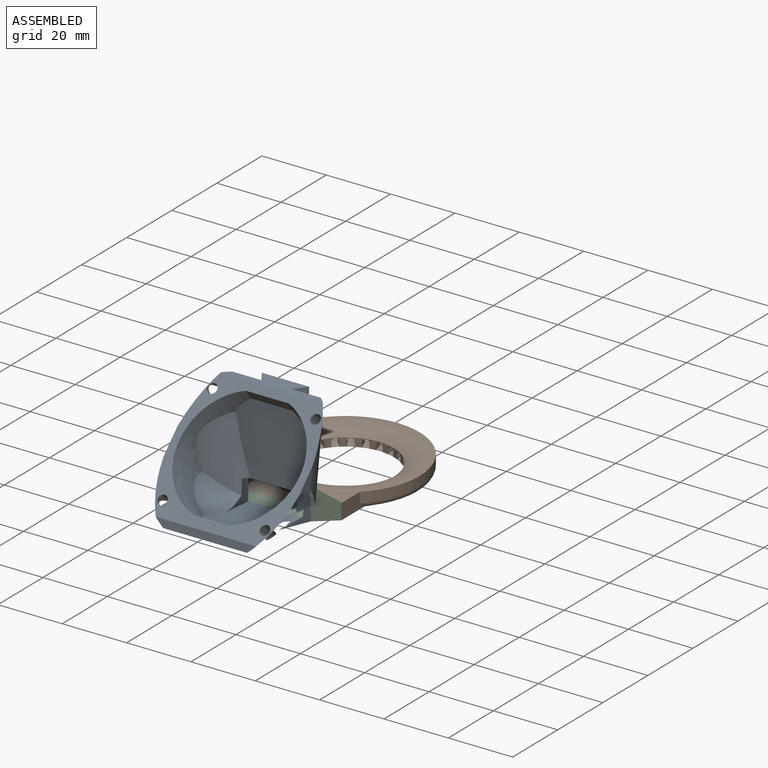
[diagram: assembled view]
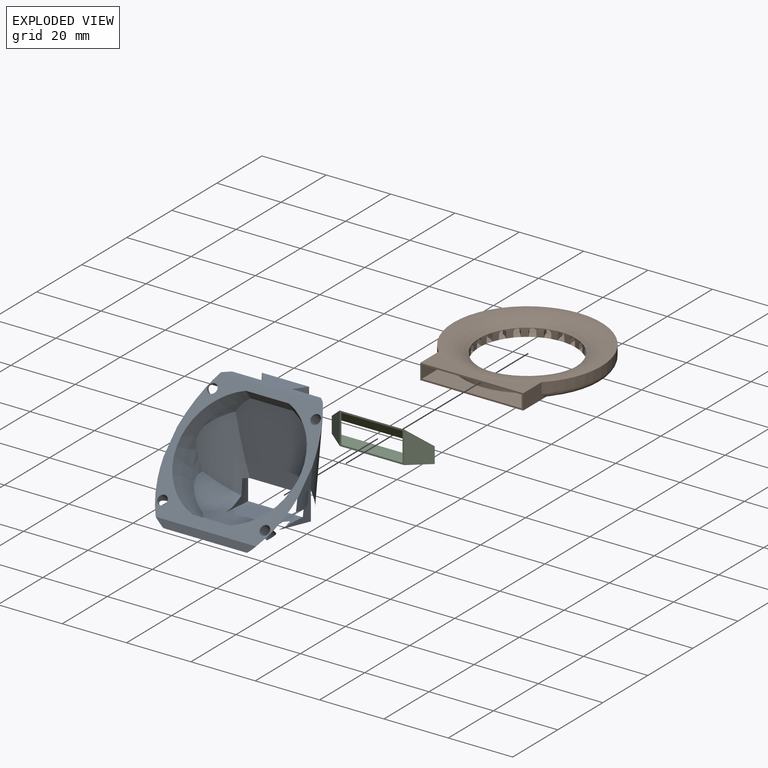
[diagram: exploded view]
GUIDED TOUR — MATED ASSEMBLY (Onshape document 0e795ca63bd0996926d6128a, AutoMate assembly 0e795ca63bd0996926d6128a_d4a6fadc4d893857315e8d26_8da15abcdf3ecfe9f2e31ee3_default)

This assembly has 3 components, labeled P0..P2 below (a component is one placed occurrence of a part; the same part can appear more than once), held together by 2 mates. A mate is a constraint between two components; its type names the relative motion it leaves free:
  FASTENED — locks the two components together rigidly (no relative motion).
Axis/direction vectors are unit vectors and 'through' points are millimeter coordinates, both in the assembly's world frame.

MATES
  1. FASTENED "Fastened 2": P2 <-> P0, direction (0.000, -1.000, 0.000) through (-1.57, 24.06, -5.65) mm
  2. FASTENED "Fastened 1": P1 <-> P2, direction (0.000, -1.000, 0.000) through (-7.57, 29.06, -5.65) mm

ASSEMBLY ORDER
  1. P0 — the base component [order verified]
  2. P2 [order verified]
  3. P1 [order verified]
Order-tag legend:
  [order verified] — this step's position reverses a verified removal order: the component was checked to insert without passing through the ones already placed.

Of the 3 components, 1 carries the full construction recipe — the FeatureScript program that regenerates the part's solid from scratch; the rest are supplied as boundary geometry only.
Each toured component is shown spotlighted twice — in the assembled view, then in the exploded view, where a leader line traces a displaced component back to its assembled socket (saturated green if recipe-attached, orange if geometry-only; every other component desaturated gray) — followed by its recipe or geometry summary and the mates that hold it.
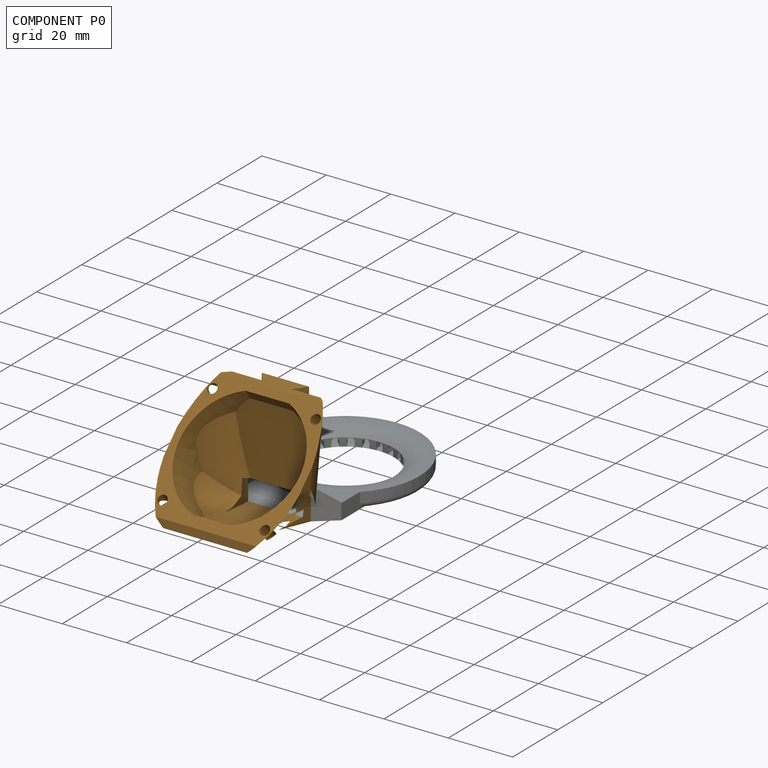
[diagram: component P0 — assembled]
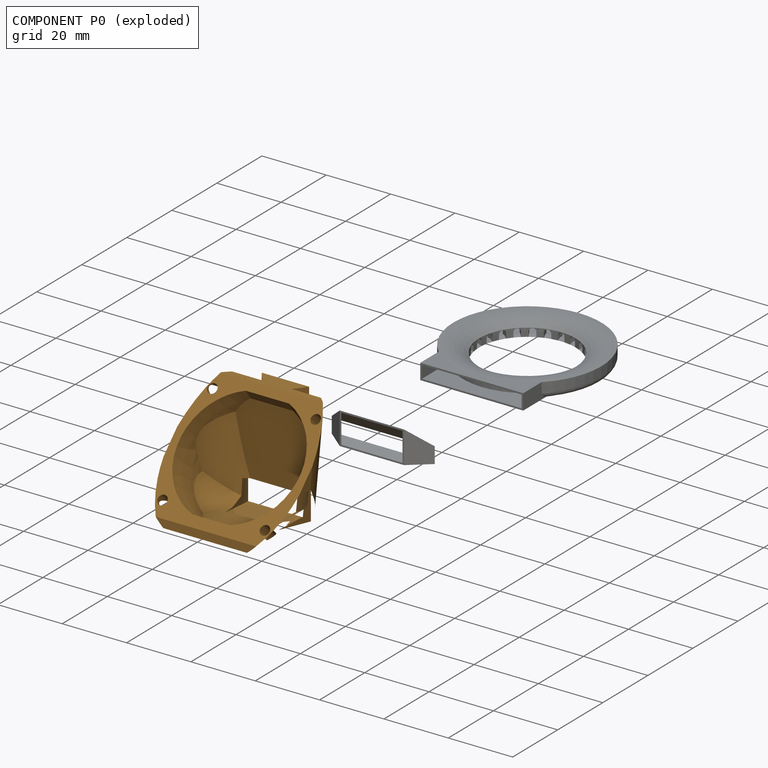
[diagram: component P0 — exploded]
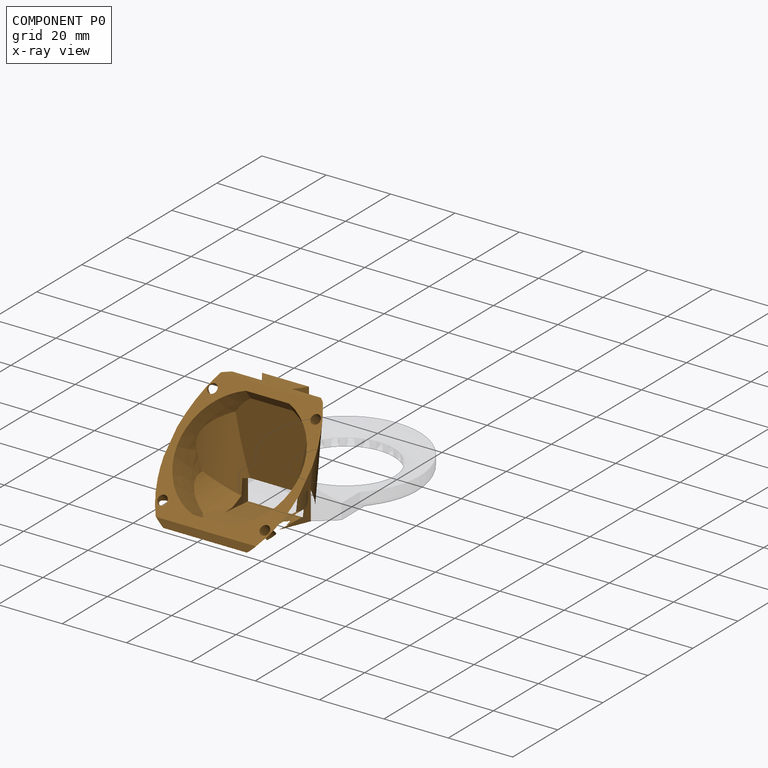
[diagram: component P0 — x-ray view]
COMPONENT P0 — geometry summary (no construction recipe available for this part):
  bounding box: 42.1 x 38.0 x 35.8 mm
  B-rep topology: 1 solid, 77 faces, 406 edges
  volume: 7590 mm^3 (13% of its bounding box)
Held by: FASTENED mate "Fastened 2" to P2.
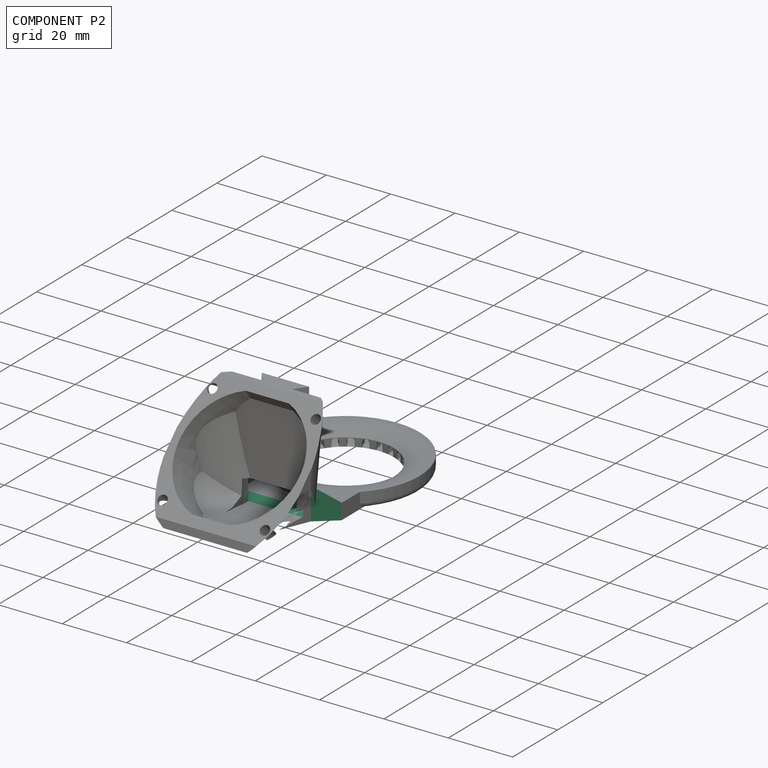
[diagram: component P2 — assembled]
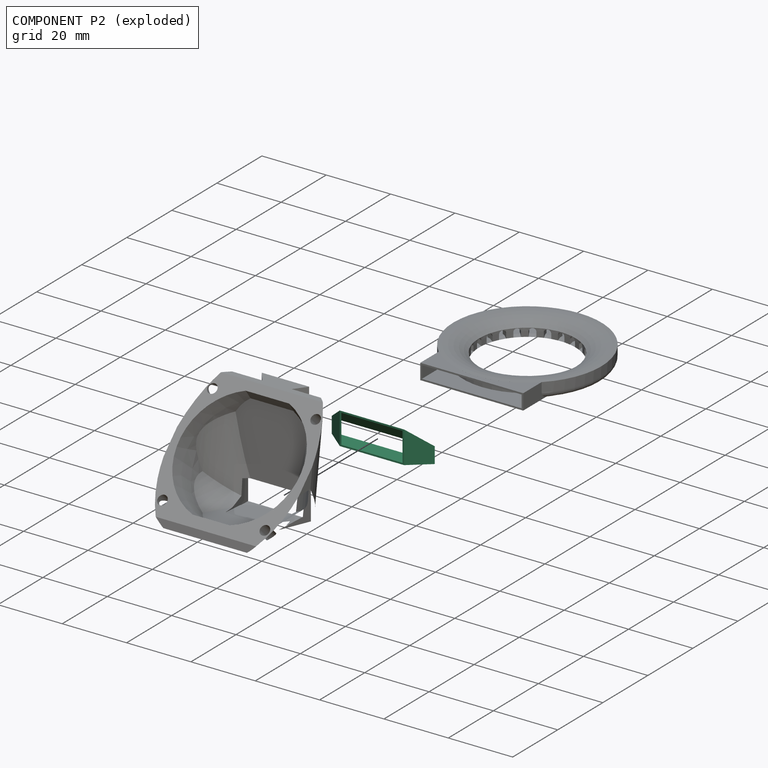
[diagram: component P2 — exploded]
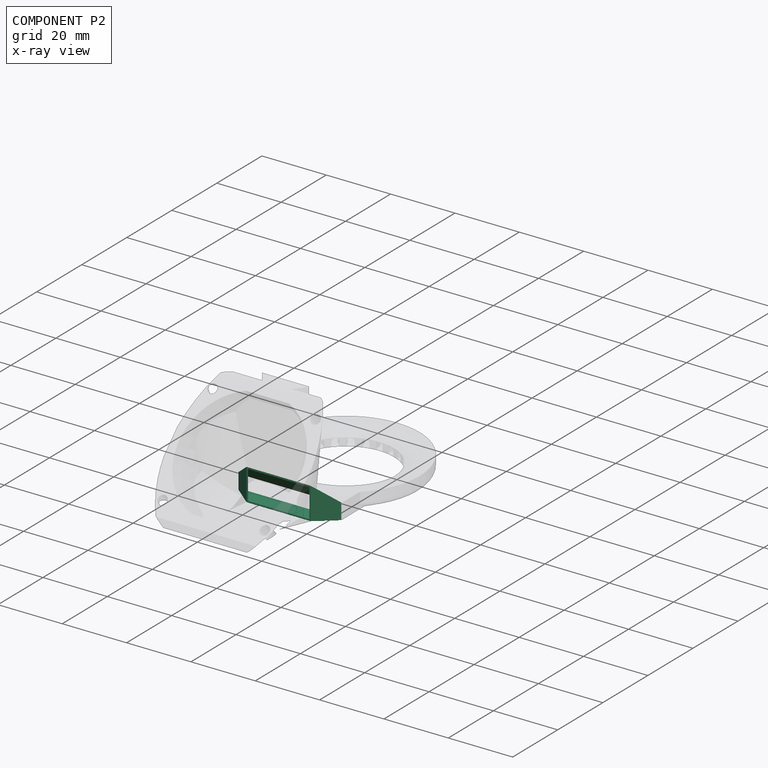
[diagram: component P2 — x-ray view]
COMPONENT P2 — recipe-attached (CADFS 00532685, mesh-verified: the recipe's output STEP matches this component's geometry to below the mesh-comparison resolution (tessellation chordal tolerance ~0.0508 mm)).
Held by: FASTENED mate "Fastened 2" to P0; FASTENED mate "Fastened 1" to P1.
Construction recipe (FeatureScript — the CAD program that rebuilds this solid; sketch coordinates are in the units given by the * unit suffixes, e.g. mm):

FeatureScript 1511;
import(path : "onshape/std/geometry.fs", version : "1511.0");
import(path : "onshape/std/common.fs", version : "1511.0");
const mm = millimeter;
const VERTEX = EntityType.VERTEX;
const EDGE = EntityType.EDGE;
const FACE = EntityType.FACE;
const BODY = EntityType.BODY;
function v(x, y){return vector(x, y);}
function OD(order){return orderDisambiguation(order);}
function OSD(set){return originalSetDisambiguation(set);}
function TD(topology){return topologyDisambiguation(topology);}
function TDD(query){return trueDependencyDisambiguation(query);}
function sQuery(a, b, c) {return sketchEntityQuery(a, b, c);}

annotation { "Feature Type Name" : "Feature", "Feature Type Description" : "" }
export const myFeature = defineFeature(function(context is Context, id is Id, definition is map)
    precondition{}
    {
        {
            var Q0;
            Q0=qCreatedBy(makeId("Right.planeOp"),FACE);
            var sketch = newSketch(context, id + "F0", { "sketchPlane" : qUnion([Q0])});
            skLineSegment(sketch, "E0.bottom", {"start": v(-16, 5) * mm, "end": v(16, 5) * mm});
            skLineSegment(sketch, "E0.top", {"start": v(-16, 0) * mm, "end": v(16, 0) * mm});
            skLineSegment(sketch, "E0.left", {"start": v(-16, 5) * mm, "end": v(-16, 0) * mm});
            skLineSegment(sketch, "E0.right", {"start": v(16, 5) * mm, "end": v(16, 0) * mm});
            skSolve(sketch);
        }
        {
            var Q0;
            Q0=qCreatedBy(makeId("Right.planeOp"),FACE);
            cPlane(context, id + "F1", {"entities" : qUnion([Q0]), "cplaneType" : CPlaneType.OFFSET, "offset" : 5 * mm, "width" : 150 * mm, "height" : 150 * mm});
        }
        {
            var Q0;
            Q0=qCreatedBy(id+"F1.planeOp",FACE);
            var sketch = newSketch(context, id + "F2", { "sketchPlane" : qUnion([Q0])});
            skLineSegment(sketch, "E1.bottom", {"start": v(-10, 10) * mm, "end": v(10, 10) * mm});
            skLineSegment(sketch, "E1.top", {"start": v(-10, 0) * mm, "end": v(10, 0) * mm});
            skLineSegment(sketch, "E1.left", {"start": v(-10, 10) * mm, "end": v(-10, 0) * mm});
            skLineSegment(sketch, "E1.right", {"start": v(10, 10) * mm, "end": v(10, 0) * mm});
            skSolve(sketch);
        }
        {
            var Q0;
            Q0=makeQuery(id+"F0.imprint","IMPRINT",FACE,{"disambiguationData":[TD([[makeQuery(id+"F0.imprint","IMPRINT",EDGE,{"derivedFrom":sQuery(id+"F0.wireOp",EDGE,"E0.bottom")}),-1.0]])]});
            var Q1;
            Q1=makeQuery(id+"F2.imprint","IMPRINT",FACE,{"disambiguationData":[TD([[makeQuery(id+"F2.imprint","IMPRINT",EDGE,{"derivedFrom":sQuery(id+"F2.wireOp",EDGE,"E1.bottom")}),-1.0]])]});
            loft(context, id + "F3", {"sheetProfilesArray" : [{ "sheetProfileEntities" : qUnion([Q0]) }, { "sheetProfileEntities" : qUnion([Q1]) }]});
        }
        {
            var Q0;
            Q0=qCreatedBy(makeId("Right.planeOp"),FACE);
            var sketch = newSketch(context, id + "F4", { "sketchPlane" : qUnion([Q0])});
            skLineSegment(sketch, "E2.bottom", {"start": v(-15.5, 4.5) * mm, "end": v(15.5, 4.5) * mm});
            skLineSegment(sketch, "E2.top", {"start": v(-15.5, 0.5) * mm, "end": v(15.5, 0.5) * mm});
            skLineSegment(sketch, "E2.left", {"start": v(-15.5, 4.5) * mm, "end": v(-15.5, 0.5) * mm});
            skLineSegment(sketch, "E2.right", {"start": v(15.5, 4.5) * mm, "end": v(15.5, 0.5) * mm});
            skSolve(sketch);
        }
        {
            var Q0;
            Q0=qCreatedBy(id+"F1.planeOp",FACE);
            var sketch = newSketch(context, id + "F5", { "sketchPlane" : qUnion([Q0])});
            skLineSegment(sketch, "E3.bottom", {"start": v(-9.5, 9.5) * mm, "end": v(9.5, 9.5) * mm});
            skLineSegment(sketch, "E3.top", {"start": v(-9.5, 0.5) * mm, "end": v(9.5, 0.5) * mm});
            skLineSegment(sketch, "E3.left", {"start": v(-9.5, 9.5) * mm, "end": v(-9.5, 0.5) * mm});
            skLineSegment(sketch, "E3.right", {"start": v(9.5, 9.5) * mm, "end": v(9.5, 0.5) * mm});
            skSolve(sketch);
        }
        {
            var Q1;
            Q1 = qSketchRegion(id + "F4", true);
            var Q2;
            Q2 = qSketchRegion(id + "F5", true);
            loft(context, id + "F6", {"operationType" : NewBodyOperationType.REMOVE, "sheetProfilesArray" : [{ "sheetProfileEntities" : qUnion([Q1]) }, { "sheetProfileEntities" : qUnion([Q2]) }]});
        }
    });
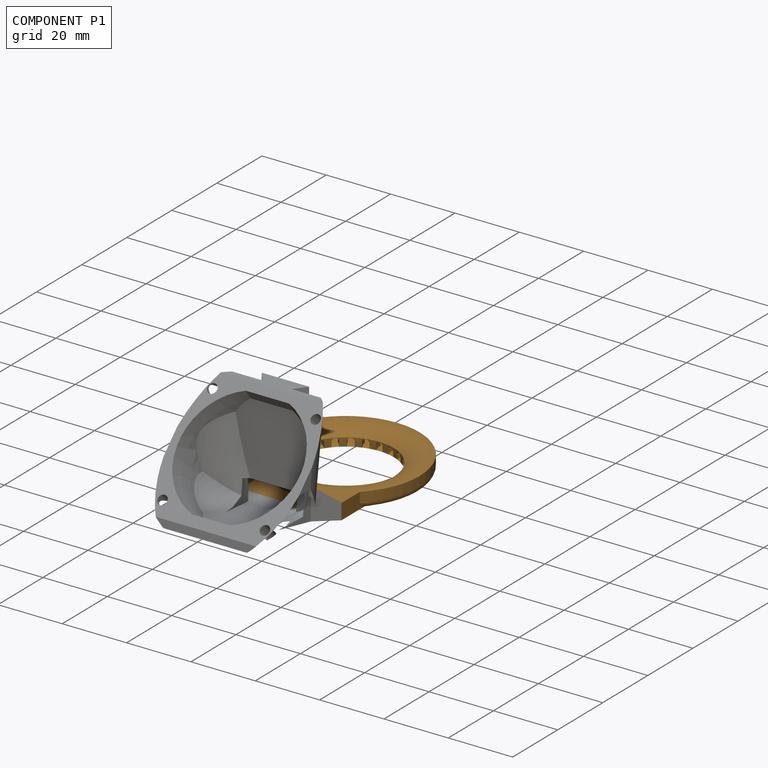
[diagram: component P1 — assembled]
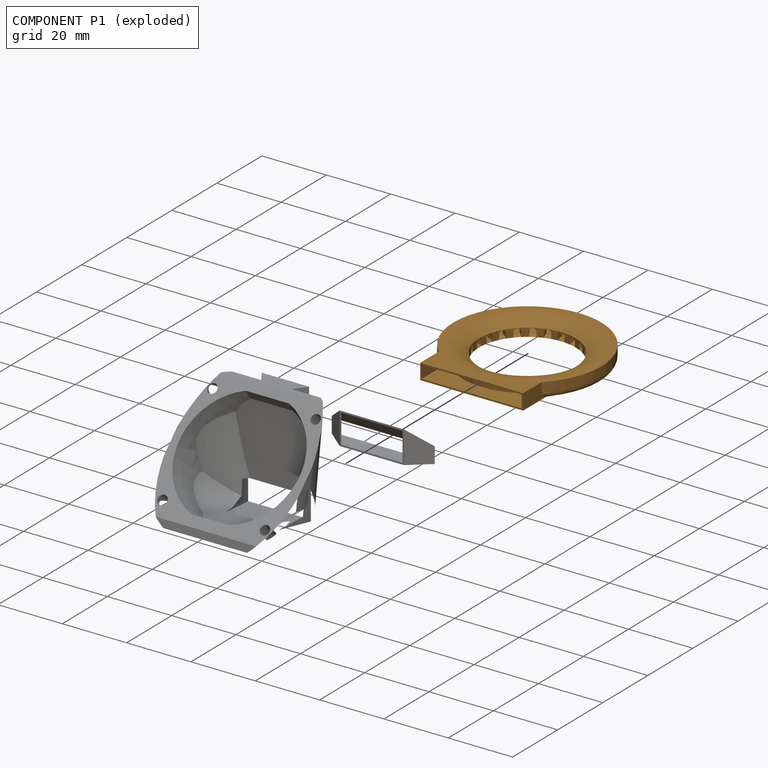
[diagram: component P1 — exploded]
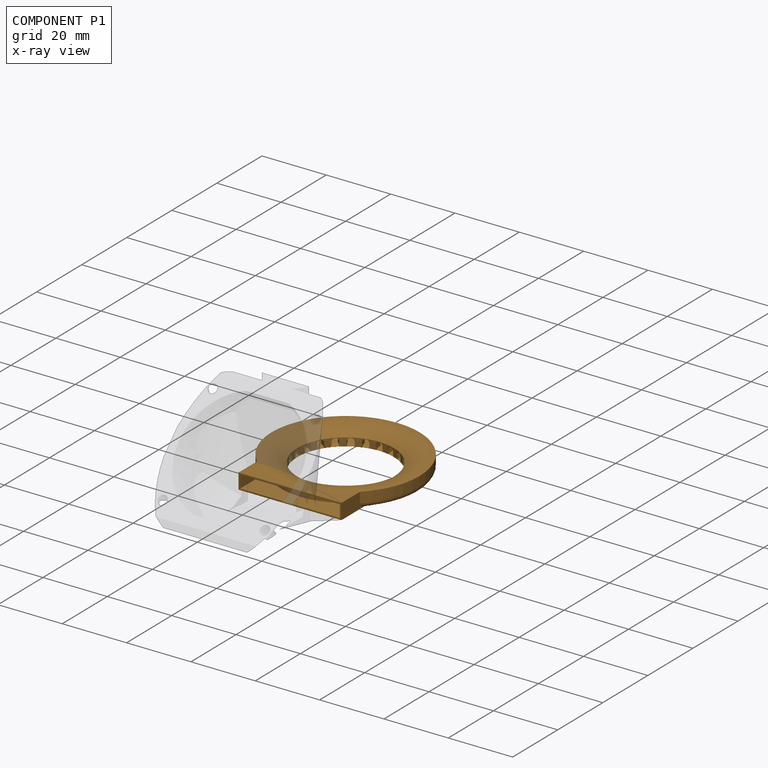
[diagram: component P1 — x-ray view]
COMPONENT P1 — geometry summary (no construction recipe available for this part):
  bounding box: 62.7 x 62.7 x 5.9 mm
  B-rep topology: 1 solid, 429 faces, 2700 edges
  volume: 1543 mm^3 (7% of its bounding box)
  symmetry: mirror-symmetric across its x mid-plane
Held by: FASTENED mate "Fastened 1" to P2.
PROVENANCE & LICENSES
Assembly (occurrences, transforms, mates, per-part STEP geometry): AutoMate dataset, Zenodo record 7776208, CC0.
Construction recipes: CADFS (HuggingFace VladPyatov/CADFS, CC-BY-4.0, layered over the ABC dataset), FeatureScript reconstruction programs keyed by ABC model id.
Join: ABC meta listings map ABC model id -> Onshape documentId; within a shared document, parts are matched by geometric signature (bounding-box dims + volume at 0.1% relative tolerance, exact B-rep face/solid counts).
Verification: 1 of this assembly's 3 components carries a recipe attachment, and every attachment is mesh-verified: the CADFS STEP and the AutoMate member STEP were compared as meshes in their shared local frame (symmetric sampled-point-to-mesh distance); worst across the 1 attachment: below the mesh-comparison resolution (tessellation chordal tolerance ~0.0508 mm) on a 34 mm part.
Renders: orthographic iso camera (az 35 / el 25); the floor grid conveys scale (grid pitch printed in each image; no ruler). In the exploded view each component is displaced by its stored offset vector: the offsets alone carry the explosion direction (mate normal/axis signs are not orientation cues and do not encode it), and separation distances are assigned per mate-chain, not proportionally to assembly-order depth.
